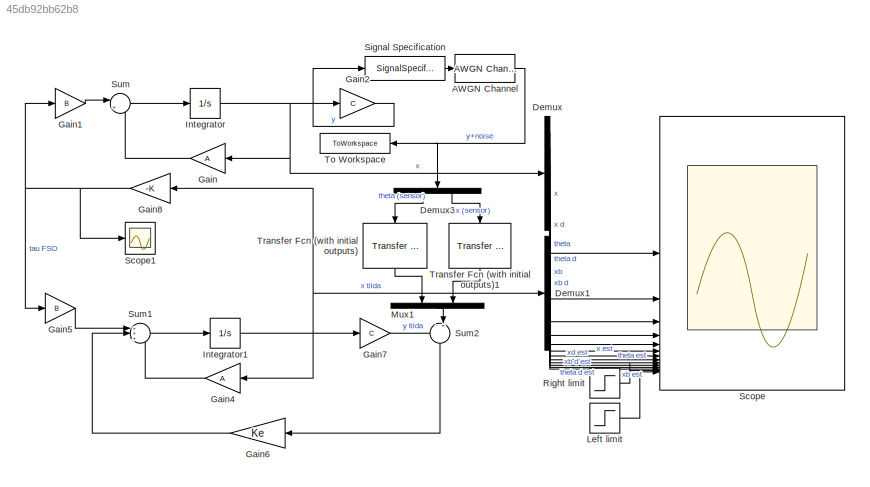
MODEL slx_45db92bb62b8
KIND model
CONFIG AbsTol = auto
CONFIG EnableMultiTasking = off
CONFIG FixedStep = auto
CONFIG MaxStep = auto
CONFIG MinStep = auto
CONFIG RelTol = 1e-3
CONFIG SampleTimeConstraint = Unconstrained
CONFIG SolverName = VariableStepAuto
CONFIG StartTime = 0.0
CONFIG StopTime = 10
BLOCK [Reference] AWGN Channel  REF=commchan3/AWGN
Channel
  SourceBlock = commchan3/AWGN\nChannel
  SourceType = AWGN Channel
BLOCK [Demux] Demux
  Outputs = 6
BLOCK [Demux] Demux1
  Outputs = 6
BLOCK [Demux] Demux3
  NameLocation = left
  Outputs = 2
BLOCK [Gain] Gain
  Gain = A
  Multiplication = Matrix(K*u)
BLOCK [Gain] Gain1
  Gain = B
  Multiplication = Matrix(K*u)
BLOCK [Gain] Gain2
  Gain = C
  Multiplication = Matrix(K*u)
BLOCK [Gain] Gain4
  Gain = A
  Multiplication = Matrix(K*u)
BLOCK [Gain] Gain5
  Gain = B
  Multiplication = Matrix(K*u)
BLOCK [Gain] Gain6
  Gain = Ke
  Multiplication = Matrix(K*u)
BLOCK [Gain] Gain7
  Gain = C
  Multiplication = Matrix(K*u)
BLOCK [Gain] Gain8
  Gain = -K
  Multiplication = Matrix(K*u)
BLOCK [Integrator] Integrator
  InitialCondition = x0
BLOCK [Integrator] Integrator1
  InitialCondition = x0_obsv
BLOCK [Step] Left limit
  After = -params.d/2
  NameLocation = left
  SampleTime = 0
  Time = 0
BLOCK [Mux] Mux1
  DisplayOption = bar
  Inputs = 2
  NameLocation = left
BLOCK [Step] Right limit
  After = params.d/2
  NameLocation = left
  SampleTime = 0
  Time = 0
BLOCK [Scope] Scope
  ActiveDisplayYMaximum = 0.38439971124629296
  ActiveDisplayYMinimum = -0.18004514737433785
  Floating = off
  GraphicalSettings = {"Style":{"BackgroundColor":[0.12941176470588237,0.12941176470588237,0.12941176470588237],"AxesColor":[0.07058823529411765,0.07058823529411765,0.07058823529411765],"LabelsColor":[0.8509803921568627,0.8509803921568627,0.8509803921568627],"PreserveColors":false,"Visible":[false,false,false,false,true,false,false,false,false,false,false,false,true,true],"LineStyle":["-","-","-","-","-","-","-","-","-...<+3430ch>
  MultipleDisplayCache = [{"MaxYLimMag":0.38439971124629296,"MaxYLimReal":0.38439971124629296,"MinYLimMag":0,"MinYLimReal":-0.18004514737433785,"PlotAsMagnitudePhase":false,"ShowGrid":true,"ShowLegend":true,"Title":"%<SignalLabel>","YLabel":""}]
  NumInputPorts = 14
  SampleTime = 1e-4
  ScopeFrameLocation = window
  ShowLegend = on
  WasSavedAsWebScope = on
  WindowPosition = [1.000000,1.000000,1536.000000,841.000000,]
BLOCK [Scope] Scope1
  ActiveDisplayYMaximum = 1
  ActiveDisplayYMinimum = -1
  DataLoggingVariableName = ScopeData1
  Floating = off
  GraphicalSettings = {"Style":{"BackgroundColor":[0.12941176470588237,0.12941176470588237,0.12941176470588237],"AxesColor":[0.07058823529411765,0.07058823529411765,0.07058823529411765],"LabelsColor":[0.8509803921568627,0.8509803921568627,0.8509803921568627],"PreserveColors":false,"Visible":[true],"LineStyle":["-"],"LineWidth":[1.5],"BarWidth":[0.9],"LineColor":["auto"],"LineFaceAlpha":[1],"LineEdgeAlpha":[1],"Marker":...<+1996ch>
  MultipleDisplayCache = [{"MaxYLimMag":1,"MaxYLimReal":1,"MinYLimMag":0,"MinYLimReal":-1,"PlotAsMagnitudePhase":false,"ShowGrid":true,"ShowLegend":false,"Title":"%<SignalLabel>","YLabel":""}]
  NumInputPorts = 1
  ScopeFrameLocation = window
  WasSavedAsWebScope = on
  WindowPosition = [1.000000,1.000000,1536.000000,841.000000,]
BLOCK [SignalSpecification] Signal Specification
  Dimensions = [2,1]
  SampleTime = 1e-4
BLOCK [Sum] Sum
  Inputs = |++
BLOCK [Sum] Sum1
  Inputs = +++
BLOCK [Sum] Sum2
  Inputs = -+|
  NameLocation = left
BLOCK [ToWorkspace] To Workspace
  FixptAsFi = on
  MaxDataPoints = inf
  SampleTime = 1e-4
  SaveFormat = Structure With Time
  VariableName = noisy_signal
BLOCK [Reference] Transfer Fcn (with initial outputs)  REF=simulink_extras/Additional
Linear/Transfer Fcn
(with initial outputs)
  NameLocation = left
  SourceBlock = simulink_extras/Additional\nLinear/Transfer Fcn\n(with initial outputs)
  SourceType = Transfer Function with Initial Outputs
BLOCK [Reference] Transfer Fcn (with initial outputs)1  REF=simulink_extras/Additional
Linear/Transfer Fcn
(with initial outputs)
  NameLocation = left
  SourceBlock = simulink_extras/Additional\nLinear/Transfer Fcn\n(with initial outputs)
  SourceType = Transfer Function with Initial Outputs
NET AWGN Channel:1 -> Demux3:1, To Workspace:1
LINE Demux1:1 -> Scope:7
LINE Demux1:2 -> Scope:8
LINE Demux1:3 -> Scope:9
LINE Demux1:4 -> Scope:10
LINE Demux1:5 -> Scope:11
LINE Demux1:6 -> Scope:12
LINE Demux3:1 -> Transfer Fcn (with initial outputs):1
LINE Demux3:2 -> Transfer Fcn (with initial outputs)1:1
LINE Demux:1 -> Scope:1
LINE Demux:2 -> Scope:2
LINE Demux:3 -> Scope:3
LINE Demux:4 -> Scope:4
LINE Demux:5 -> Scope:5
LINE Demux:6 -> Scope:6
LINE Gain1:1 -> Sum:1
LINE Gain2:1 -> Signal Specification:1
LINE Gain4:1 -> Sum1:3
LINE Gain5:1 -> Sum1:1
LINE Gain6:1 -> Sum1:2
LINE Gain7:1 -> Sum2:1
NET Gain8:1 -> Gain1:1, Gain5:1, Scope1:1
LINE Gain:1 -> Sum:2
NET Integrator1:1 -> Demux1:1, Gain4:1, Gain7:1, Gain8:1
NET Integrator:1 -> Demux:1, Gain2:1, Gain:1
LINE Left limit:1 -> Scope:14
LINE Mux1:1 -> Sum2:2
LINE Right limit:1 -> Scope:13
LINE Signal Specification:1 -> AWGN Channel:1
LINE Sum1:1 -> Integrator1:1
LINE Sum2:1 -> Gain6:1
LINE Sum:1 -> Integrator:1
LINE Transfer Fcn (with initial outputs)1:1 -> Mux1:2
LINE Transfer Fcn (with initial outputs):1 -> Mux1:1
note: NET lines group one-source signal fan-out (src -> all destinations, sorted); 1:1 wires keep LINE
